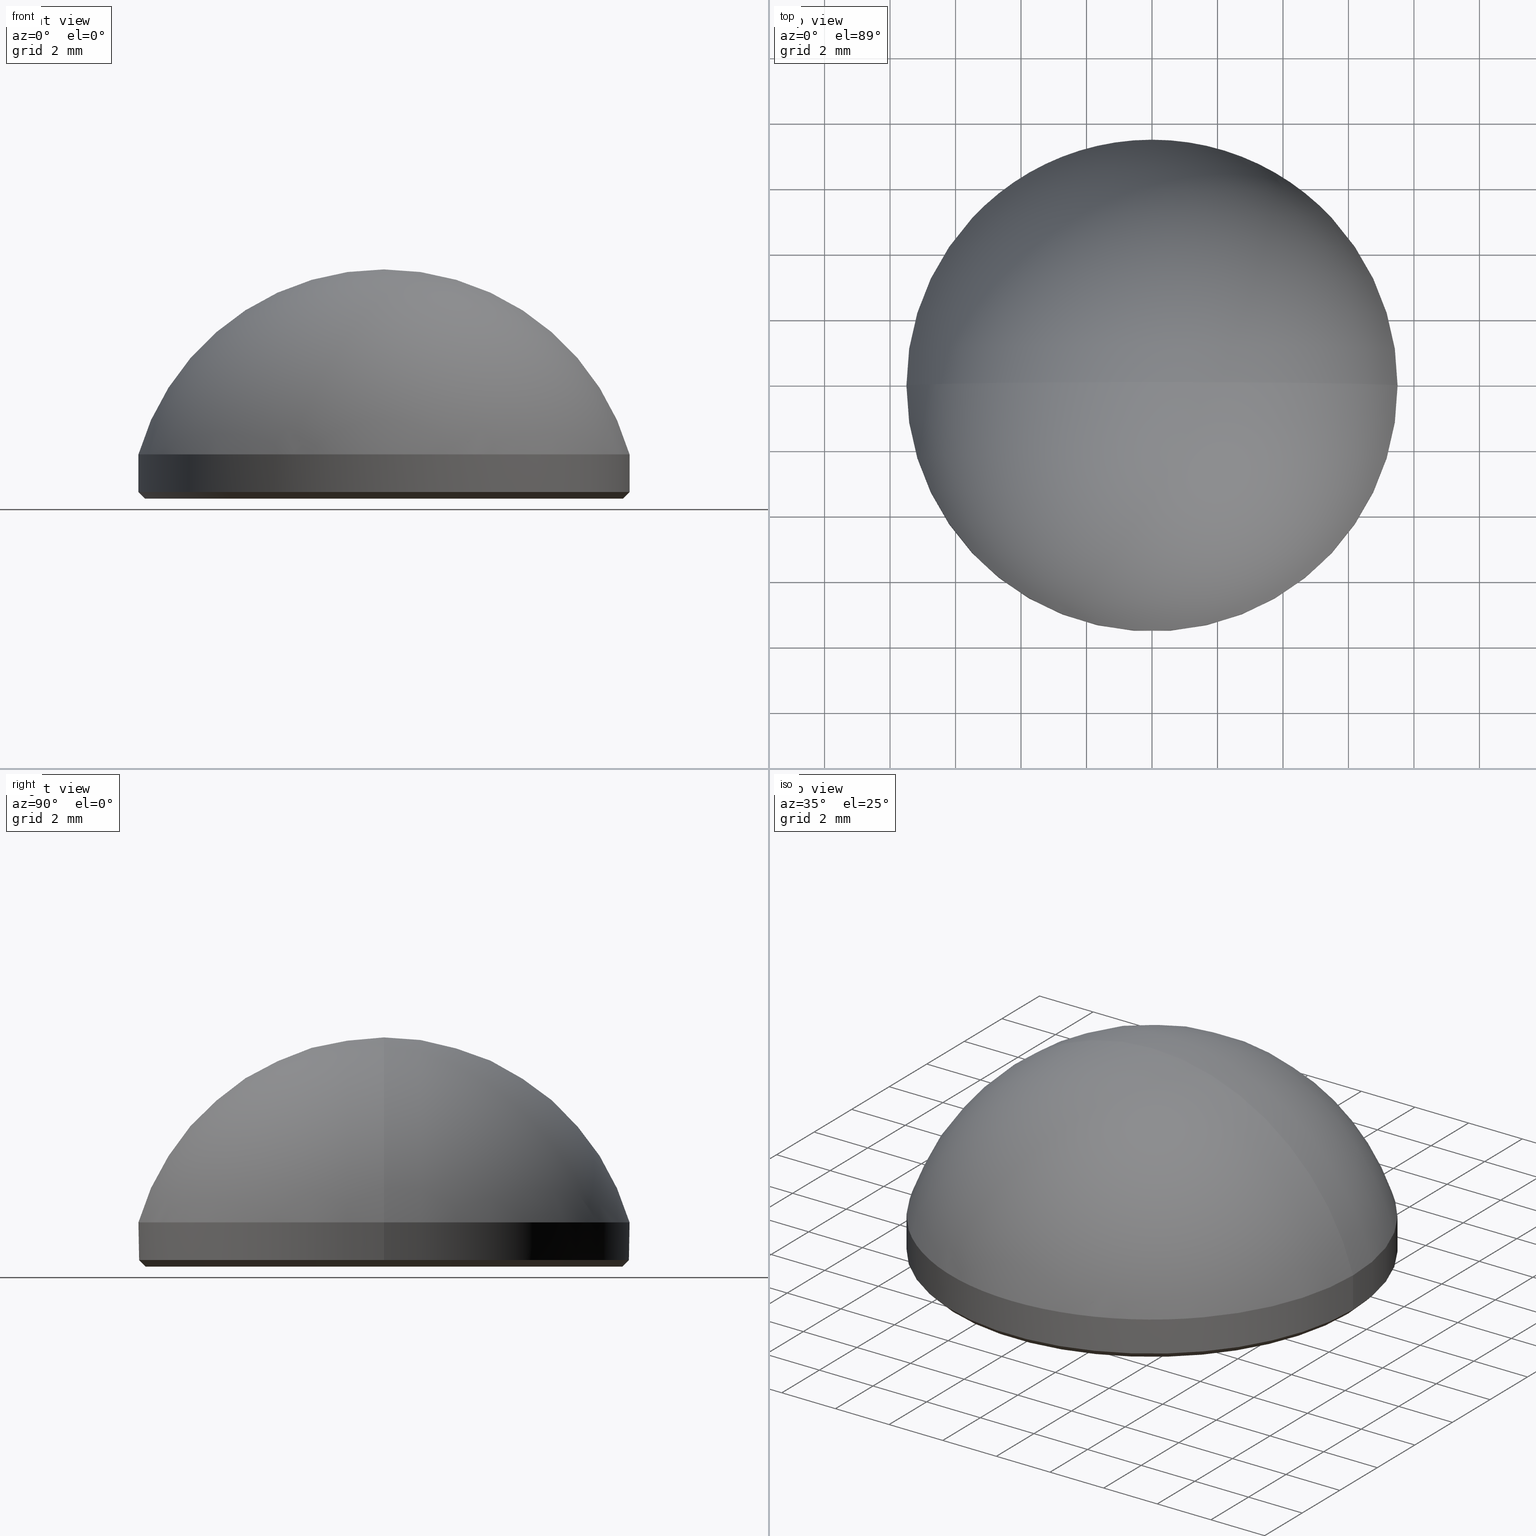
[diagram: canonical four-view strip — front | top / right | iso, engineering-drawing reading convention]
A machine part, canonical four-view strip (front | top / right | iso — engineering-drawing reading convention). The complete STEP part file that produces these views, byte-faithful:
ISO-10303-21;
HEADER;
FILE_DESCRIPTION (( 'STEP AP214' ),
    '1' );
FILE_NAME ('GLA11-015-9-SWIR.STEP',
    '2024-08-09T08:22:32',
    ( 'Windows User' ),
    ( 'P R C' ),
    'SwSTEP 2.0',
    'SolidWorks 2022',
    '' );
FILE_SCHEMA (( 'AUTOMOTIVE_DESIGN' ));
ENDSEC;

DATA;
#1 = FILL_AREA_STYLE_COLOUR ( '', #74 ) ;
#2 = AXIS2_PLACEMENT_3D ( 'NONE', #146, #11, #200 ) ;
#3 = EDGE_CURVE ( 'NONE', #27, #149, #214, .T. ) ;
#4 = VERTEX_POINT ( 'NONE', #59 ) ;
#5 = VERTEX_POINT ( 'NONE', #76 ) ;
#6 = ADVANCED_FACE ( 'NONE', ( #94 ), #14, .T. ) ;
#7 = DIRECTION ( 'NONE',  ( 1.000000000000000000, 0.000000000000000000, 0.000000000000000000 ) ) ;
#8 = DIRECTION ( 'NONE',  ( -0.000000000000000000, -0.000000000000000000, 1.000000000000000000 ) ) ;
#9 = VECTOR ( 'NONE', #183, 1000.000000000000227 ) ;
#10 = CARTESIAN_POINT ( 'NONE',  ( 0.000000000000000000, 0.000000000000000000, 0.2000000000000065892 ) ) ;
#11 = DIRECTION ( 'NONE',  ( -0.000000000000000000, -1.000000000000000000, 0.000000000000000000 ) ) ;
#12 = DIRECTION ( 'NONE',  ( 0.000000000000000000, 0.000000000000000000, 1.000000000000000000 ) ) ;
#13 = PRODUCT_DEFINITION_CONTEXT ( 'detailed design', #138, 'design' ) ;
#14 = CONICAL_SURFACE ( 'NONE', #42, 7.500000000000000888, 0.7853981633974461696 ) ;
#15 = SURFACE_STYLE_FILL_AREA ( #163 ) ;
#16 = CARTESIAN_POINT ( 'NONE',  ( 0.000000000000000000, 0.000000000000000000, 0.2000000000000065892 ) ) ;
#17 = ADVANCED_FACE ( 'NONE', ( #124 ), #179, .T. ) ;
#18 = CIRCLE ( 'NONE', #57, 7.802876106194690742 ) ;
#19 = PRODUCT ( 'GLA11-015-9-SWIR', 'GLA11-015-9-SWIR', '', ( #132 ) ) ;
#20 = EDGE_LOOP ( 'NONE', ( #114, #167, #201 ) ) ;
#21 = FILL_AREA_STYLE ('',( #1 ) ) ;
#22 = PRESENTATION_LAYER_ASSIGNMENT (  '', '', ( #90 ) ) ;
#23 = DIRECTION ( 'NONE',  ( -0.000000000000000000, -1.000000000000000000, 0.000000000000000000 ) ) ;
#24 = UNCERTAINTY_MEASURE_WITH_UNIT (LENGTH_MEASURE( 1.000000000000000082E-05 ), #109, 'distance_accuracy_value', 'NONE');
#25 = ADVANCED_FACE ( 'NONE', ( #93 ), #206, .T. ) ;
#26 = CARTESIAN_POINT ( 'NONE',  ( 0.000000000000000000, 0.000000000000000000, 0.2000000000000065892 ) ) ;
#27 = VERTEX_POINT ( 'NONE', #155 ) ;
#28 = EDGE_CURVE ( 'NONE', #4, #95, #191, .T. ) ;
#29 = ORIENTED_EDGE ( 'NONE', *, *, #56, .F. ) ;
#30 = DIRECTION ( 'NONE',  ( -0.000000000000000000, -0.000000000000000000, -1.000000000000000000 ) ) ;
#31 = LINE ( 'NONE', #99, #46 ) ;
#32 = DIRECTION ( 'NONE',  ( 1.000000000000000000, 0.000000000000000000, -0.000000000000000000 ) ) ;
#33 = CIRCLE ( 'NONE', #168, 7.299999999999994493 ) ;
#34 = DIRECTION ( 'NONE',  ( -0.000000000000000000, -0.000000000000000000, -1.000000000000000000 ) ) ;
#35 = CARTESIAN_POINT ( 'NONE',  ( 0.000000000000000000, 0.000000000000000000, 0.000000000000000000 ) ) ;
#36 = DIRECTION ( 'NONE',  ( 0.000000000000000000, 0.000000000000000000, 1.000000000000000000 ) ) ;
#37 = MECHANICAL_DESIGN_GEOMETRIC_PRESENTATION_REPRESENTATION (  '', ( #111 ), #62 ) ;
#38 = SHAPE_DEFINITION_REPRESENTATION ( #174, #177 ) ;
#39 = EDGE_LOOP ( 'NONE', ( #142, #157, #40 ) ) ;
#40 = ORIENTED_EDGE ( 'NONE', *, *, #185, .F. ) ;
#41 = CIRCLE ( 'NONE', #136, 7.500000000000000888 ) ;
#42 = AXIS2_PLACEMENT_3D ( 'NONE', #10, #197, #44 ) ;
#43 = CARTESIAN_POINT ( 'NONE',  ( 7.500000000000000888, 9.184850993605147944E-16, 1.350000000000000089 ) ) ;
#44 = DIRECTION ( 'NONE',  ( 1.000000000000000000, 0.000000000000000000, 0.000000000000000000 ) ) ;
#45 = CARTESIAN_POINT ( 'NONE',  ( 0.000000000000000000, 0.000000000000000000, 0.2000000000000065892 ) ) ;
#46 = VECTOR ( 'NONE', #34, 1000.000000000000000 ) ;
#47 = PRESENTATION_LAYER_ASSIGNMENT (  '', '', ( #111 ) ) ;
#48 = CARTESIAN_POINT ( 'NONE',  ( 7.500000000000000888, 0.000000000000000000, 0.2000000000000065892 ) ) ;
#49 = CARTESIAN_POINT ( 'NONE',  ( -9.114692313739364955E-16, 0.000000000000000000, 7.000000000000000000 ) ) ;
#50 = CARTESIAN_POINT ( 'NONE',  ( 0.000000000000000000, 0.000000000000000000, 1.350000000000000089 ) ) ;
#51 = SPHERICAL_SURFACE ( 'NONE', #2, 7.802876106194690742 ) ;
#52 = APPLICATION_PROTOCOL_DEFINITION ( 'draft international standard', 'automotive_design', 1998, #138 ) ;
#53 =( NAMED_UNIT ( * ) SI_UNIT ( $, .STERADIAN. ) SOLID_ANGLE_UNIT ( ) );
#54 = ORIENTED_EDGE ( 'NONE', *, *, #65, .T. ) ;
#55 = VECTOR ( 'NONE', #194, 1000.000000000000000 ) ;
#56 = EDGE_CURVE ( 'NONE', #4, #149, #135, .T. ) ;
#57 = AXIS2_PLACEMENT_3D ( 'NONE', #61, #128, #85 ) ;
#58 = ORIENTED_EDGE ( 'NONE', *, *, #202, .T. ) ;
#59 = CARTESIAN_POINT ( 'NONE',  ( -7.299999999999994493, 9.062386313690410430E-16, 0.000000000000000000 ) ) ;
#60 = EDGE_LOOP ( 'NONE', ( #169, #54, #158, #84 ) ) ;
#61 = CARTESIAN_POINT ( 'NONE',  ( -4.336808689942017736E-16, 0.000000000000000000, -0.8028761061946902977 ) ) ;
#62 =( GEOMETRIC_REPRESENTATION_CONTEXT ( 3 ) GLOBAL_UNCERTAINTY_ASSIGNED_CONTEXT ( ( #24 ) ) GLOBAL_UNIT_ASSIGNED_CONTEXT ( ( #109, #88, #71 ) ) REPRESENTATION_CONTEXT ( 'NONE', 'WORKASPACE' ) );
#63 = CARTESIAN_POINT ( 'NONE',  ( -4.336808689942017736E-16, 0.000000000000000000, -0.8028761061946902977 ) ) ;
#64 = CARTESIAN_POINT ( 'NONE',  ( 0.000000000000000000, 0.000000000000000000, 1.350000000000000089 ) ) ;
#65 = EDGE_CURVE ( 'NONE', #188, #27, #121, .T. ) ;
#66 = EDGE_LOOP ( 'NONE', ( #89, #77, #70, #152 ) ) ;
#67 = DIRECTION ( 'NONE',  ( 1.000000000000000000, 0.000000000000000000, 0.000000000000000000 ) ) ;
#68 = APPLICATION_PROTOCOL_DEFINITION ( 'draft international standard', 'automotive_design', 1998, #110 ) ;
#69 = CARTESIAN_POINT ( 'NONE',  ( 0.000000000000000000, 0.000000000000000000, 0.000000000000000000 ) ) ;
#70 = ORIENTED_EDGE ( 'NONE', *, *, #3, .F. ) ;
#71 =( NAMED_UNIT ( * ) SI_UNIT ( $, .STERADIAN. ) SOLID_ANGLE_UNIT ( ) );
#72 = ORIENTED_EDGE ( 'NONE', *, *, #28, .T. ) ;
#73 =( GEOMETRIC_REPRESENTATION_CONTEXT ( 3 ) GLOBAL_UNCERTAINTY_ASSIGNED_CONTEXT ( ( #79 ) ) GLOBAL_UNIT_ASSIGNED_CONTEXT ( ( #102, #120, #53 ) ) REPRESENTATION_CONTEXT ( 'NONE', 'WORKASPACE' ) );
#74 = COLOUR_RGB ( '',1.000000000000000000, 1.000000000000000000, 1.000000000000000000 ) ;
#75 = DIRECTION ( 'NONE',  ( -1.000000000000000000, 0.000000000000000000, 0.000000000000000000 ) ) ;
#76 = CARTESIAN_POINT ( 'NONE',  ( -7.500000000000000888, 0.000000000000000000, 1.350000000000000089 ) ) ;
#77 = ORIENTED_EDGE ( 'NONE', *, *, #56, .T. ) ;
#78 = FACE_OUTER_BOUND ( 'NONE', #86, .T. ) ;
#79 = UNCERTAINTY_MEASURE_WITH_UNIT (LENGTH_MEASURE( 1.000000000000000082E-05 ), #102, 'distance_accuracy_value', 'NONE');
#80 = DIRECTION ( 'NONE',  ( -0.000000000000000000, -0.000000000000000000, -1.000000000000000000 ) ) ;
#81 = PRODUCT_DEFINITION_FORMATION_WITH_SPECIFIED_SOURCE ( '�κ�', '', #19, .NOT_KNOWN. ) ;
#82 = SURFACE_SIDE_STYLE ('',( #15 ) ) ;
#83 = DIRECTION ( 'NONE',  ( 1.000000000000000000, 0.000000000000000000, 0.000000000000000000 ) ) ;
#84 = ORIENTED_EDGE ( 'NONE', *, *, #202, .F. ) ;
#85 = DIRECTION ( 'NONE',  ( 0.000000000000000000, 0.000000000000000000, 1.000000000000000000 ) ) ;
#86 = EDGE_LOOP ( 'NONE', ( #172, #143, #58, #190 ) ) ;
#87 = AXIS2_PLACEMENT_3D ( 'NONE', #16, #144, #209 ) ;
#88 =( NAMED_UNIT ( * ) PLANE_ANGLE_UNIT ( ) SI_UNIT ( $, .RADIAN. ) );
#89 = ORIENTED_EDGE ( 'NONE', *, *, #28, .F. ) ;
#90 = STYLED_ITEM ( 'NONE', ( #147 ), #213 ) ;
#91 = SURFACE_STYLE_USAGE ( .BOTH. , #107 ) ;
#92 = ADVANCED_FACE ( 'NONE', ( #112 ), #176, .F. ) ;
#93 = FACE_OUTER_BOUND ( 'NONE', #207, .T. ) ;
#94 = FACE_OUTER_BOUND ( 'NONE', #66, .T. ) ;
#95 = VERTEX_POINT ( 'NONE', #215 ) ;
#96 =( GEOMETRIC_REPRESENTATION_CONTEXT ( 3 ) GLOBAL_UNCERTAINTY_ASSIGNED_CONTEXT ( ( #162 ) ) GLOBAL_UNIT_ASSIGNED_CONTEXT ( ( #187, #108, #171 ) ) REPRESENTATION_CONTEXT ( 'NONE', 'WORKASPACE' ) );
#97 = CARTESIAN_POINT ( 'NONE',  ( -7.500000000000000888, 9.184850993605149917E-16, 0.2000000000000065892 ) ) ;
#98 = CARTESIAN_POINT ( 'NONE',  ( 0.000000000000000000, 0.000000000000000000, 0.000000000000000000 ) ) ;
#99 = CARTESIAN_POINT ( 'NONE',  ( -7.500000000000000888, 0.000000000000000000, 1.350000000000000089 ) ) ;
#100 = CYLINDRICAL_SURFACE ( 'NONE', #173, 7.500000000000000888 ) ;
#101 = AXIS2_PLACEMENT_3D ( 'NONE', #63, #115, #186 ) ;
#102 =( LENGTH_UNIT ( ) NAMED_UNIT ( * ) SI_UNIT ( .MILLI., .METRE. ) );
#103 = DIRECTION ( 'NONE',  ( -1.000000000000000000, 0.000000000000000000, 0.000000000000000000 ) ) ;
#104 = EDGE_CURVE ( 'NONE', #188, #5, #118, .T. ) ;
#105 = ORIENTED_EDGE ( 'NONE', *, *, #175, .T. ) ;
#106 = AXIS2_PLACEMENT_3D ( 'NONE', #50, #12, #67 ) ;
#107 = SURFACE_SIDE_STYLE ('',( #189 ) ) ;
#108 =( NAMED_UNIT ( * ) PLANE_ANGLE_UNIT ( ) SI_UNIT ( $, .RADIAN. ) );
#109 =( LENGTH_UNIT ( ) NAMED_UNIT ( * ) SI_UNIT ( .MILLI., .METRE. ) );
#110 = APPLICATION_CONTEXT ( 'automotive_design' ) ;
#111 = STYLED_ITEM ( 'NONE', ( #170 ), #177 ) ;
#112 = FACE_OUTER_BOUND ( 'NONE', #178, .T. ) ;
#113 = DIRECTION ( 'NONE',  ( 1.000000000000000000, 0.000000000000000000, 0.000000000000000000 ) ) ;
#114 = ORIENTED_EDGE ( 'NONE', *, *, #140, .F. ) ;
#115 = DIRECTION ( 'NONE',  ( -1.224646799147353207E-16, -1.000000000000000000, -0.000000000000000000 ) ) ;
#116 = FACE_OUTER_BOUND ( 'NONE', #60, .T. ) ;
#117 = DIRECTION ( 'NONE',  ( -0.000000000000000000, -0.000000000000000000, -1.000000000000000000 ) ) ;
#118 = CIRCLE ( 'NONE', #106, 7.500000000000000888 ) ;
#119 = CARTESIAN_POINT ( 'NONE',  ( -7.500000000000000888, 0.000000000000000000, 0.2000000000000065892 ) ) ;
#120 =( NAMED_UNIT ( * ) PLANE_ANGLE_UNIT ( ) SI_UNIT ( $, .RADIAN. ) );
#121 = LINE ( 'NONE', #43, #55 ) ;
#122 = AXIS2_PLACEMENT_3D ( 'NONE', #26, #8, #192 ) ;
#123 = AXIS2_PLACEMENT_3D ( 'NONE', #126, #195, #7 ) ;
#124 = FACE_OUTER_BOUND ( 'NONE', #39, .T. ) ;
#125 = EDGE_CURVE ( 'NONE', #5, #188, #41, .T. ) ;
#126 = CARTESIAN_POINT ( 'NONE',  ( 0.000000000000000000, 0.000000000000000000, 0.000000000000000000 ) ) ;
#127 = ORIENTED_EDGE ( 'NONE', *, *, #181, .F. ) ;
#128 = DIRECTION ( 'NONE',  ( 0.000000000000000000, 1.000000000000000000, 0.000000000000000000 ) ) ;
#129 = CARTESIAN_POINT ( 'NONE',  ( 0.000000000000000000, 0.000000000000000000, 1.350000000000000089 ) ) ;
#130 = VECTOR ( 'NONE', #159, 1000.000000000000227 ) ;
#131 = DIRECTION ( 'NONE',  ( 0.000000000000000000, 0.000000000000000000, 1.000000000000000000 ) ) ;
#132 = PRODUCT_CONTEXT ( 'NONE', #110, 'mechanical' ) ;
#133 = AXIS2_PLACEMENT_3D ( 'NONE', #45, #203, #113 ) ;
#134 = ADVANCED_FACE ( 'NONE', ( #116 ), #100, .T. ) ;
#135 = LINE ( 'NONE', #97, #130 ) ;
#136 = AXIS2_PLACEMENT_3D ( 'NONE', #64, #131, #83 ) ;
#137 = PRODUCT_RELATED_PRODUCT_CATEGORY ( 'part', '', ( #19 ) ) ;
#138 = APPLICATION_CONTEXT ( 'automotive_design' ) ;
#139 = CARTESIAN_POINT ( 'NONE',  ( -4.336808689942017736E-16, 0.000000000000000000, -0.8028761061946902977 ) ) ;
#140 = EDGE_CURVE ( 'NONE', #188, #208, #180, .T. ) ;
#141 = MECHANICAL_DESIGN_GEOMETRIC_PRESENTATION_REPRESENTATION (  '', ( #90 ), #73 ) ;
#142 = ORIENTED_EDGE ( 'NONE', *, *, #125, .T. ) ;
#143 = ORIENTED_EDGE ( 'NONE', *, *, #125, .F. ) ;
#144 = DIRECTION ( 'NONE',  ( -0.000000000000000000, -0.000000000000000000, 1.000000000000000000 ) ) ;
#145 = ADVANCED_FACE ( 'NONE', ( #211 ), #51, .T. ) ;
#146 = CARTESIAN_POINT ( 'NONE',  ( -4.336808689942017736E-16, 0.000000000000000000, -0.8028761061946902977 ) ) ;
#147 = PRESENTATION_STYLE_ASSIGNMENT (( #148 ) ) ;
#148 = SURFACE_STYLE_USAGE ( .BOTH. , #82 ) ;
#149 = VERTEX_POINT ( 'NONE', #119 ) ;
#150 = DIRECTION ( 'NONE',  ( 0.000000000000000000, 0.000000000000000000, 1.000000000000000000 ) ) ;
#151 = AXIS2_PLACEMENT_3D ( 'NONE', #139, #23, #75 ) ;
#152 = ORIENTED_EDGE ( 'NONE', *, *, #196, .F. ) ;
#153 = DIRECTION ( 'NONE',  ( 1.000000000000000000, 0.000000000000000000, 0.000000000000000000 ) ) ;
#154 = CIRCLE ( 'NONE', #87, 7.500000000000000888 ) ;
#155 = CARTESIAN_POINT ( 'NONE',  ( 7.500000000000000888, 9.184850993605147944E-16, 0.2000000000000065892 ) ) ;
#156 = PRODUCT_DEFINITION ( 'δ֪', '', #81, #13 ) ;
#157 = ORIENTED_EDGE ( 'NONE', *, *, #140, .T. ) ;
#158 = ORIENTED_EDGE ( 'NONE', *, *, #3, .T. ) ;
#159 = DIRECTION ( 'NONE',  ( -0.7071067811865460184, 8.659560562354913137E-17, 0.7071067811865490160 ) ) ;
#160 = DIRECTION ( 'NONE',  ( 1.000000000000000000, 0.000000000000000000, 0.000000000000000000 ) ) ;
#161 = ADVANCED_FACE ( 'NONE', ( #78 ), #166, .T. ) ;
#162 = UNCERTAINTY_MEASURE_WITH_UNIT (LENGTH_MEASURE( 1.000000000000000082E-05 ), #187, 'distance_accuracy_value', 'NONE');
#163 = FILL_AREA_STYLE ('',( #165 ) ) ;
#164 = AXIS2_PLACEMENT_3D ( 'NONE', #35, #150, #32 ) ;
#165 = FILL_AREA_STYLE_COLOUR ( '', #184 ) ;
#166 = CYLINDRICAL_SURFACE ( 'NONE', #204, 7.500000000000000888 ) ;
#167 = ORIENTED_EDGE ( 'NONE', *, *, #104, .T. ) ;
#168 = AXIS2_PLACEMENT_3D ( 'NONE', #98, #117, #160 ) ;
#169 = ORIENTED_EDGE ( 'NONE', *, *, #104, .F. ) ;
#170 = PRESENTATION_STYLE_ASSIGNMENT (( #91 ) ) ;
#171 =( NAMED_UNIT ( * ) SI_UNIT ( $, .STERADIAN. ) SOLID_ANGLE_UNIT ( ) );
#172 = ORIENTED_EDGE ( 'NONE', *, *, #65, .F. ) ;
#173 = AXIS2_PLACEMENT_3D ( 'NONE', #129, #80, #212 ) ;
#174 = PRODUCT_DEFINITION_SHAPE ( 'NONE', 'NONE',  #156 ) ;
#175 = EDGE_CURVE ( 'NONE', #95, #4, #33, .T. ) ;
#176 = PLANE ( 'NONE',  #164 ) ;
#177 = ADVANCED_BREP_SHAPE_REPRESENTATION ( 'GLA11-015-9-SWIR', ( #213, #210 ), #96 ) ;
#178 = EDGE_LOOP ( 'NONE', ( #105, #72 ) ) ;
#179 = SPHERICAL_SURFACE ( 'NONE', #151, 7.802876106194690742 ) ;
#180 = CIRCLE ( 'NONE', #101, 7.802876106194690742 ) ;
#181 = EDGE_CURVE ( 'NONE', #149, #27, #154, .T. ) ;
#182 = CARTESIAN_POINT ( 'NONE',  ( 0.000000000000000000, 0.000000000000000000, 1.350000000000000089 ) ) ;
#183 = DIRECTION ( 'NONE',  ( 0.7071067811865460184, 0.000000000000000000, 0.7071067811865490160 ) ) ;
#184 = COLOUR_RGB ( '',1.000000000000000000, 1.000000000000000000, 1.000000000000000000 ) ;
#185 = EDGE_CURVE ( 'NONE', #5, #208, #18, .T. ) ;
#186 = DIRECTION ( 'NONE',  ( 1.000000000000000000, -1.224646799147353207E-16, 0.000000000000000000 ) ) ;
#187 =( LENGTH_UNIT ( ) NAMED_UNIT ( * ) SI_UNIT ( .MILLI., .METRE. ) );
#188 = VERTEX_POINT ( 'NONE', #198 ) ;
#189 = SURFACE_STYLE_FILL_AREA ( #21 ) ;
#190 = ORIENTED_EDGE ( 'NONE', *, *, #181, .T. ) ;
#191 = CIRCLE ( 'NONE', #123, 7.299999999999994493 ) ;
#192 = DIRECTION ( 'NONE',  ( 1.000000000000000000, 0.000000000000000000, 0.000000000000000000 ) ) ;
#193 = CLOSED_SHELL ( 'NONE', ( #6, #17, #134, #161, #92, #145, #25 ) ) ;
#194 = DIRECTION ( 'NONE',  ( -0.000000000000000000, -0.000000000000000000, -1.000000000000000000 ) ) ;
#195 = DIRECTION ( 'NONE',  ( -0.000000000000000000, -0.000000000000000000, -1.000000000000000000 ) ) ;
#196 = EDGE_CURVE ( 'NONE', #95, #27, #199, .T. ) ;
#197 = DIRECTION ( 'NONE',  ( -0.000000000000000000, -0.000000000000000000, 1.000000000000000000 ) ) ;
#198 = CARTESIAN_POINT ( 'NONE',  ( 7.500000000000000888, 9.184850993605147944E-16, 1.350000000000000089 ) ) ;
#199 = LINE ( 'NONE', #48, #9 ) ;
#200 = DIRECTION ( 'NONE',  ( -1.000000000000000000, 0.000000000000000000, 0.000000000000000000 ) ) ;
#201 = ORIENTED_EDGE ( 'NONE', *, *, #185, .T. ) ;
#202 = EDGE_CURVE ( 'NONE', #5, #149, #31, .T. ) ;
#203 = DIRECTION ( 'NONE',  ( -0.000000000000000000, -0.000000000000000000, 1.000000000000000000 ) ) ;
#204 = AXIS2_PLACEMENT_3D ( 'NONE', #182, #30, #103 ) ;
#205 = ORIENTED_EDGE ( 'NONE', *, *, #196, .T. ) ;
#206 = CONICAL_SURFACE ( 'NONE', #133, 7.500000000000000888, 0.7853981633974461696 ) ;
#207 = EDGE_LOOP ( 'NONE', ( #29, #216, #205, #127 ) ) ;
#208 = VERTEX_POINT ( 'NONE', #49 ) ;
#209 = DIRECTION ( 'NONE',  ( 1.000000000000000000, 0.000000000000000000, 0.000000000000000000 ) ) ;
#210 = AXIS2_PLACEMENT_3D ( 'NONE', #69, #36, #153 ) ;
#211 = FACE_OUTER_BOUND ( 'NONE', #20, .T. ) ;
#212 = DIRECTION ( 'NONE',  ( -1.000000000000000000, 0.000000000000000000, 0.000000000000000000 ) ) ;
#213 = MANIFOLD_SOLID_BREP ( '����1', #193 ) ;
#214 = CIRCLE ( 'NONE', #122, 7.500000000000000888 ) ;
#215 = CARTESIAN_POINT ( 'NONE',  ( 7.299999999999994493, 0.000000000000000000, 0.000000000000000000 ) ) ;
#216 = ORIENTED_EDGE ( 'NONE', *, *, #175, .F. ) ;
ENDSEC;
END-ISO-10303-21;
